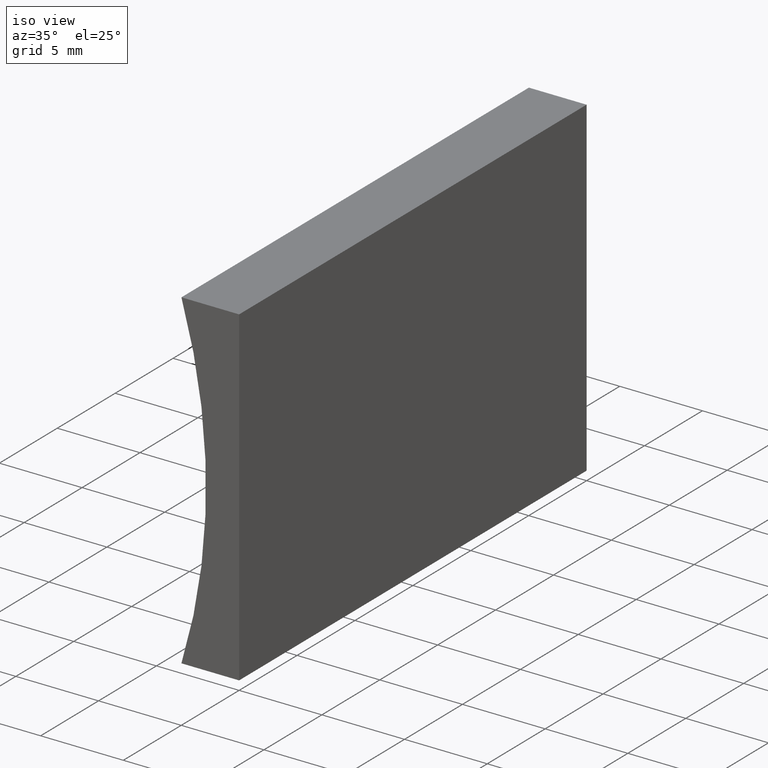
[diagram: clean part render]
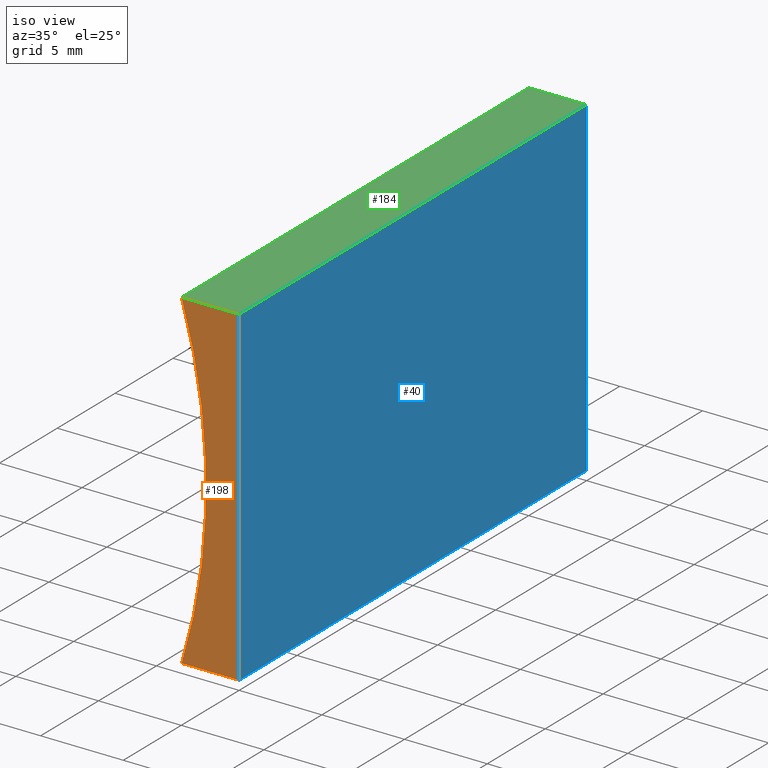
[diagram: same view with three faces highlighted in distinct colors, each labeled with its STEP entity id]
A machine part, iso view with three faces highlighted in distinct colors.
Their STEP definitions:

[orange] entity #198 — the highlighted planar face has unit normal (0, 1, 0).
#1 = EDGE_CURVE ( 'NONE', #187, #111, #101, .T. ) ;
#5 = LINE ( 'NONE', #142, #27 ) ;
#12 = CARTESIAN_POINT ( 'NONE',  ( 0.0000000000000000000, 0.0000000000000000000, 0.0000000000000000000 ) ) ;
#21 = DIRECTION ( 'NONE',  ( 0.0000000000000000000, 1.000000000000000000, 0.0000000000000000000 ) ) ;
#22 = ORIENTED_EDGE ( 'NONE', *, *, #1, .F. ) ;
#27 = VECTOR ( 'NONE', #139, 1000.000000000000000 ) ;
#34 = ORIENTED_EDGE ( 'NONE', *, *, #159, .F. ) ;
#41 = DIRECTION ( 'NONE',  ( -0.0000000000000000000, -1.000000000000000000, -0.0000000000000000000 ) ) ;
#42 = VECTOR ( 'NONE', #120, 1000.000000000000000 ) ;
#54 = VERTEX_POINT ( 'NONE', #74 ) ;
#73 = EDGE_LOOP ( 'NONE', ( #165, #34, #22, #100 ) ) ;
#74 = CARTESIAN_POINT ( 'NONE',  ( -3.487825695794269300, 0.0000000000000000000, 6.938893903907228400E-015 ) ) ;
#75 = VECTOR ( 'NONE', #131, 1000.000000000000000 ) ;
#79 = VERTEX_POINT ( 'NONE', #129 ) ;
#80 = CARTESIAN_POINT ( 'NONE',  ( 2.449293598294706500E-015, 0.0000000000000000000, 20.00000000000000000 ) ) ;
#84 = CARTESIAN_POINT ( 'NONE',  ( -3.487825695794261700, 0.0000000000000000000, 19.99999999999999600 ) ) ;
#96 = LINE ( 'NONE', #12, #42 ) ;
#98 = CARTESIAN_POINT ( 'NONE',  ( -36.35000000000000100, 0.0000000000000000000, 10.00000000000000700 ) ) ;
#100 = ORIENTED_EDGE ( 'NONE', *, *, #200, .F. ) ;
#101 = LINE ( 'NONE', #80, #75 ) ;
#103 = PLANE ( 'NONE',  #152 ) ;
#111 = VERTEX_POINT ( 'NONE', #148 ) ;
#114 = CARTESIAN_POINT ( 'NONE',  ( -36.35000000000000100, 0.0000000000000000000, 10.00000000000000700 ) ) ;
#120 = DIRECTION ( 'NONE',  ( -1.224646799147353200E-016, -0.0000000000000000000, -1.000000000000000000 ) ) ;
#129 = CARTESIAN_POINT ( 'NONE',  ( 0.0000000000000000000, 0.0000000000000000000, 0.0000000000000000000 ) ) ;
#131 = DIRECTION ( 'NONE',  ( 1.000000000000000000, -0.0000000000000000000, 9.947306013993727700E-016 ) ) ;
#137 = CIRCLE ( 'NONE', #173, 34.34999999999999400 ) ;
#139 = DIRECTION ( 'NONE',  ( -1.000000000000000000, 0.0000000000000000000, 1.989461202798745500E-015 ) ) ;
#142 = CARTESIAN_POINT ( 'NONE',  ( 0.0000000000000000000, 0.0000000000000000000, 0.0000000000000000000 ) ) ;
#148 = CARTESIAN_POINT ( 'NONE',  ( 2.449293598294706500E-015, 0.0000000000000000000, 20.00000000000000000 ) ) ;
#152 = AXIS2_PLACEMENT_3D ( 'NONE', #98, #21, #195 ) ;
#155 = EDGE_CURVE ( 'NONE', #79, #54, #5, .T. ) ;
#159 = EDGE_CURVE ( 'NONE', #111, #79, #96, .T. ) ;
#162 = DIRECTION ( 'NONE',  ( 0.0000000000000000000, 0.0000000000000000000, 1.000000000000000000 ) ) ;
#165 = ORIENTED_EDGE ( 'NONE', *, *, #155, .F. ) ;
#173 = AXIS2_PLACEMENT_3D ( 'NONE', #114, #41, #162 ) ;
#187 = VERTEX_POINT ( 'NONE', #84 ) ;
#188 = FACE_OUTER_BOUND ( 'NONE', #73, .T. ) ;
#195 = DIRECTION ( 'NONE',  ( 0.0000000000000000000, -0.0000000000000000000, 1.000000000000000000 ) ) ;
#198 = ADVANCED_FACE ( 'NONE', ( #188 ), #103, .F. ) ;
#200 = EDGE_CURVE ( 'NONE', #54, #187, #137, .T. ) ;

[blue] entity #40 — the highlighted planar face has unit normal (-1, 0, 0).
#3 = DIRECTION ( 'NONE',  ( -1.224646799147353200E-016, -0.0000000000000000000, -1.000000000000000000 ) ) ;
#12 = CARTESIAN_POINT ( 'NONE',  ( 0.0000000000000000000, 0.0000000000000000000, 0.0000000000000000000 ) ) ;
#25 = CARTESIAN_POINT ( 'NONE',  ( 0.0000000000000000000, 30.00000000000000000, 0.0000000000000000000 ) ) ;
#39 = EDGE_CURVE ( 'NONE', #201, #79, #93, .T. ) ;
#40 = ADVANCED_FACE ( 'NONE', ( #193 ), #158, .F. ) ;
#42 = VECTOR ( 'NONE', #120, 1000.000000000000000 ) ;
#53 = ORIENTED_EDGE ( 'NONE', *, *, #39, .F. ) ;
#60 = DIRECTION ( 'NONE',  ( -1.000000000000000000, 0.0000000000000000000, 1.224646799147353200E-016 ) ) ;
#68 = DIRECTION ( 'NONE',  ( -0.0000000000000000000, -1.000000000000000000, -0.0000000000000000000 ) ) ;
#70 = CARTESIAN_POINT ( 'NONE',  ( 0.0000000000000000000, 30.00000000000000000, 0.0000000000000000000 ) ) ;
#79 = VERTEX_POINT ( 'NONE', #129 ) ;
#86 = ORIENTED_EDGE ( 'NONE', *, *, #146, .T. ) ;
#87 = VERTEX_POINT ( 'NONE', #178 ) ;
#93 = LINE ( 'NONE', #122, #104 ) ;
#96 = LINE ( 'NONE', #12, #42 ) ;
#104 = VECTOR ( 'NONE', #68, 1000.000000000000000 ) ;
#105 = VECTOR ( 'NONE', #186, 1000.000000000000000 ) ;
#106 = CARTESIAN_POINT ( 'NONE',  ( 2.449293598294706500E-015, 30.00000000000000000, 20.00000000000000000 ) ) ;
#108 = ORIENTED_EDGE ( 'NONE', *, *, #159, .T. ) ;
#111 = VERTEX_POINT ( 'NONE', #148 ) ;
#115 = ORIENTED_EDGE ( 'NONE', *, *, #181, .F. ) ;
#120 = DIRECTION ( 'NONE',  ( -1.224646799147353200E-016, -0.0000000000000000000, -1.000000000000000000 ) ) ;
#122 = CARTESIAN_POINT ( 'NONE',  ( 0.0000000000000000000, 30.00000000000000000, 0.0000000000000000000 ) ) ;
#129 = CARTESIAN_POINT ( 'NONE',  ( 0.0000000000000000000, 0.0000000000000000000, 0.0000000000000000000 ) ) ;
#132 = EDGE_LOOP ( 'NONE', ( #108, #53, #115, #86 ) ) ;
#134 = VECTOR ( 'NONE', #3, 1000.000000000000000 ) ;
#138 = AXIS2_PLACEMENT_3D ( 'NONE', #175, #60, #194 ) ;
#146 = EDGE_CURVE ( 'NONE', #87, #111, #203, .T. ) ;
#148 = CARTESIAN_POINT ( 'NONE',  ( 2.449293598294706500E-015, 0.0000000000000000000, 20.00000000000000000 ) ) ;
#158 = PLANE ( 'NONE',  #138 ) ;
#159 = EDGE_CURVE ( 'NONE', #111, #79, #96, .T. ) ;
#174 = LINE ( 'NONE', #25, #134 ) ;
#175 = CARTESIAN_POINT ( 'NONE',  ( 0.0000000000000000000, 30.00000000000000000, 0.0000000000000000000 ) ) ;
#178 = CARTESIAN_POINT ( 'NONE',  ( 2.449293598294706500E-015, 30.00000000000000000, 20.00000000000000000 ) ) ;
#181 = EDGE_CURVE ( 'NONE', #87, #201, #174, .T. ) ;
#186 = DIRECTION ( 'NONE',  ( -0.0000000000000000000, -1.000000000000000000, -0.0000000000000000000 ) ) ;
#193 = FACE_OUTER_BOUND ( 'NONE', #132, .T. ) ;
#194 = DIRECTION ( 'NONE',  ( 1.224646799147353200E-016, 0.0000000000000000000, 1.000000000000000000 ) ) ;
#201 = VERTEX_POINT ( 'NONE', #70 ) ;
#203 = LINE ( 'NONE', #106, #105 ) ;

[green] entity #184 — the highlighted planar face has unit normal (0, 0, -1).
#1 = EDGE_CURVE ( 'NONE', #187, #111, #101, .T. ) ;
#6 = VERTEX_POINT ( 'NONE', #32 ) ;
#13 = DIRECTION ( 'NONE',  ( 9.947306013993727700E-016, 0.0000000000000000000, -1.000000000000000000 ) ) ;
#18 = EDGE_CURVE ( 'NONE', #6, #87, #71, .T. ) ;
#30 = ORIENTED_EDGE ( 'NONE', *, *, #18, .F. ) ;
#32 = CARTESIAN_POINT ( 'NONE',  ( -3.487825695794261700, 30.00000000000000000, 19.99999999999999600 ) ) ;
#46 = DIRECTION ( 'NONE',  ( 1.000000000000000000, -0.0000000000000000000, 9.947306013993727700E-016 ) ) ;
#47 = VECTOR ( 'NONE', #56, 1000.000000000000000 ) ;
#56 = DIRECTION ( 'NONE',  ( -0.0000000000000000000, -1.000000000000000000, -0.0000000000000000000 ) ) ;
#65 = ORIENTED_EDGE ( 'NONE', *, *, #1, .T. ) ;
#69 = FACE_OUTER_BOUND ( 'NONE', #191, .T. ) ;
#71 = LINE ( 'NONE', #192, #135 ) ;
#75 = VECTOR ( 'NONE', #131, 1000.000000000000000 ) ;
#80 = CARTESIAN_POINT ( 'NONE',  ( 2.449293598294706500E-015, 0.0000000000000000000, 20.00000000000000000 ) ) ;
#81 = AXIS2_PLACEMENT_3D ( 'NONE', #161, #13, #164 ) ;
#84 = CARTESIAN_POINT ( 'NONE',  ( -3.487825695794261700, 0.0000000000000000000, 19.99999999999999600 ) ) ;
#87 = VERTEX_POINT ( 'NONE', #178 ) ;
#90 = LINE ( 'NONE', #156, #47 ) ;
#99 = ORIENTED_EDGE ( 'NONE', *, *, #146, .F. ) ;
#101 = LINE ( 'NONE', #80, #75 ) ;
#105 = VECTOR ( 'NONE', #186, 1000.000000000000000 ) ;
#106 = CARTESIAN_POINT ( 'NONE',  ( 2.449293598294706500E-015, 30.00000000000000000, 20.00000000000000000 ) ) ;
#111 = VERTEX_POINT ( 'NONE', #148 ) ;
#113 = PLANE ( 'NONE',  #81 ) ;
#126 = ORIENTED_EDGE ( 'NONE', *, *, #170, .T. ) ;
#131 = DIRECTION ( 'NONE',  ( 1.000000000000000000, -0.0000000000000000000, 9.947306013993727700E-016 ) ) ;
#135 = VECTOR ( 'NONE', #46, 1000.000000000000000 ) ;
#146 = EDGE_CURVE ( 'NONE', #87, #111, #203, .T. ) ;
#148 = CARTESIAN_POINT ( 'NONE',  ( 2.449293598294706500E-015, 0.0000000000000000000, 20.00000000000000000 ) ) ;
#156 = CARTESIAN_POINT ( 'NONE',  ( -3.487825695794261700, 30.00000000000000000, 19.99999999999999600 ) ) ;
#161 = CARTESIAN_POINT ( 'NONE',  ( 2.449293598294706500E-015, 30.00000000000000000, 20.00000000000000000 ) ) ;
#164 = DIRECTION ( 'NONE',  ( -1.000000000000000000, 0.0000000000000000000, -9.947306013993727700E-016 ) ) ;
#170 = EDGE_CURVE ( 'NONE', #6, #187, #90, .T. ) ;
#178 = CARTESIAN_POINT ( 'NONE',  ( 2.449293598294706500E-015, 30.00000000000000000, 20.00000000000000000 ) ) ;
#184 = ADVANCED_FACE ( 'NONE', ( #69 ), #113, .F. ) ;
#186 = DIRECTION ( 'NONE',  ( -0.0000000000000000000, -1.000000000000000000, -0.0000000000000000000 ) ) ;
#187 = VERTEX_POINT ( 'NONE', #84 ) ;
#191 = EDGE_LOOP ( 'NONE', ( #65, #99, #30, #126 ) ) ;
#192 = CARTESIAN_POINT ( 'NONE',  ( 2.449293598294706500E-015, 30.00000000000000000, 20.00000000000000000 ) ) ;
#203 = LINE ( 'NONE', #106, #105 ) ;